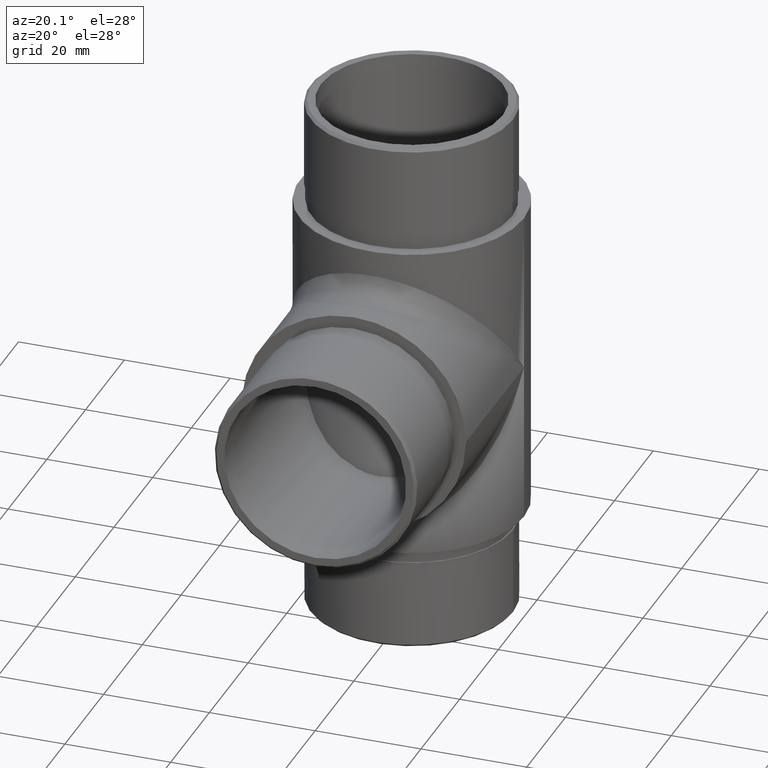
[diagram: clean part render]
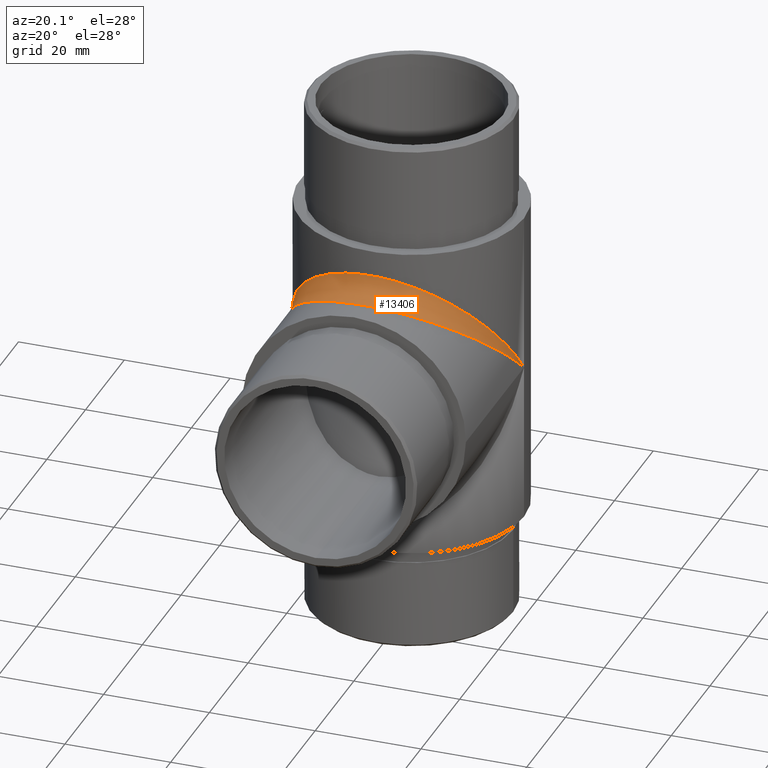
[diagram: same view with one face highlighted and labeled with its STEP entity id]
A machine part, auxiliary view. The second image highlights one B-rep face of the part: STEP entity #13406.
In plain terms, the highlighted face is a freeform B-spline surface patch.
Its self-contained STEP definition (entity closure, byte-faithful):
#20 = CARTESIAN_POINT ( 'NONE',  ( 21.19999999999594600, 48.48156063009035000, 1.518439369887790900 ) ) ;
#245 = CARTESIAN_POINT ( 'NONE',  ( 20.11723341722397500, 43.16902804253513900, 8.119834590945707500 ) ) ;
#295 = CARTESIAN_POINT ( 'NONE',  ( 8.158931141553109600, 30.34716571671100400, 19.65283428329156100 ) ) ;
#344 = CARTESIAN_POINT ( 'NONE',  ( -9.394805574707854500, 27.34940939695576400, 19.05525876129643900 ) ) ;
#386 = CARTESIAN_POINT ( 'NONE',  ( 5.496790452048763600, 29.47804704779630600, 24.39401954696608500 ) ) ;
#423 = CARTESIAN_POINT ( 'NONE',  ( 9.380193309305928700, 30.88439283652694900, 19.11560716347517200 ) ) ;
#477 = CARTESIAN_POINT ( 'NONE',  ( -19.05525876124776000, 40.60519442517997400, 11.16741040025886800 ) ) ;
#517 = CARTESIAN_POINT ( 'NONE',  ( -15.97180040982484300, 35.99047288752112200, 16.65283411483675000 ) ) ;
#1127 = CARTESIAN_POINT ( 'NONE',  ( 21.19999999999983600, 48.35064514728934200, 1.387552495128705300 ) ) ;
#1311 = CARTESIAN_POINT ( 'NONE',  ( -1.125737368065278500, 28.80000000000568900, 21.19999999999999600 ) ) ;
#1358 = CARTESIAN_POINT ( 'NONE',  ( 21.06334293691931900, 47.22496079873127400, 3.298631503401885400 ) ) ;
#1399 = CARTESIAN_POINT ( 'NONE',  ( 1.387536754971157000, 28.80000000000568900, 25.19999999999999600 ) ) ;
#1446 = CARTESIAN_POINT ( 'NONE',  ( -2.239409227885654600, 28.87991635416347300, 21.12008364584218300 ) ) ;
#1496 = CARTESIAN_POINT ( 'NONE',  ( -12.93178358779797300, 29.96328783516608500, 16.85628166248399000 ) ) ;
#1539 = CARTESIAN_POINT ( 'NONE',  ( -21.19999999999594600, 48.48156063010397100, 1.518439369906532200 ) ) ;
#1577 = CARTESIAN_POINT ( 'NONE',  ( -16.85628166244857700, 34.62825724463304800, 12.93178358785069000 ) ) ;
#2186 = VERTEX_POINT ( 'NONE', #4197 ) ;
#2220 = CARTESIAN_POINT ( 'NONE',  ( 21.19999999999999200, 50.00000000000284900, 2.390033451593520300E-012 ) ) ;
#2355 = CARTESIAN_POINT ( 'NONE',  ( -6.830971957570777200, 26.08706216448618400, 20.11723341718260000 ) ) ;
#2401 = CARTESIAN_POINT ( 'NONE',  ( 16.85628166244692500, 37.06821641215204000, 15.37174275537025600 ) ) ;
#2445 = CARTESIAN_POINT ( 'NONE',  ( 15.97180040982308200, 35.99047288751936700, 16.65283411484026400 ) ) ;
#2489 = CARTESIAN_POINT ( 'NONE',  ( -9.394805574707488600, 30.94474123870922400, 22.65059060304992000 ) ) ;
#2532 = CARTESIAN_POINT ( 'NONE',  ( 12.93969731450562900, 33.08453572048951900, 16.91546427951944800 ) ) ;
#2540 = ORIENTED_EDGE ( 'NONE', *, *, #4991, .F. ) ;
#2577 = CARTESIAN_POINT ( 'NONE',  ( -21.20000000000014900, 48.61244750487848200, 1.649354852719447000 ) ) ;
#2624 = CARTESIAN_POINT ( 'NONE',  ( -19.90922392696631600, 42.53796719160212100, 7.462032808405070700 ) ) ;
#3407 = CARTESIAN_POINT ( 'NONE',  ( -1.387536754971248700, 24.80000000000568900, 21.19999999999999600 ) ) ;
#3452 = CARTESIAN_POINT ( 'NONE',  ( 9.394805574709719700, 30.94474123871015100, 22.65059060304683000 ) ) ;
#3492 = CARTESIAN_POINT ( 'NONE',  ( 18.39802989917851400, 39.37560570782448400, 12.62899698882062400 ) ) ;
#3538 = CARTESIAN_POINT ( 'NONE',  ( 5.496790452048948300, 25.60598045303959900, 20.52195295220940400 ) ) ;
#3584 = CARTESIAN_POINT ( 'NONE',  ( 16.85628166244798400, 34.62825724463542800, 12.93178358785158700 ) ) ;
#3631 = CARTESIAN_POINT ( 'NONE',  ( -18.66376453321944200, 39.79218389910428000, 10.20781610089901600 ) ) ;
#3675 = CARTESIAN_POINT ( 'NONE',  ( -16.11916415239836900, 36.09608611141825200, 13.90391388858326800 ) ) ;
#3751 = CARTESIAN_POINT ( 'NONE',  ( 21.19999999999999900, 50.00000000000568400, 0.0000000000000000000 ) ) ;
#4197 = CARTESIAN_POINT ( 'NONE',  ( -21.19999999999999900, 50.00000000000568400, 0.0000000000000000000 ) ) ;
#4221 = CARTESIAN_POINT ( 'NONE',  ( 21.06334293691975600, 46.70136849660379900, 2.775039201273806500 ) ) ;
#4444 = CARTESIAN_POINT ( 'NONE',  ( 17.88959957407314100, 38.48824466618227500, 11.51175533382668800 ) ) ;
#4490 = CARTESIAN_POINT ( 'NONE',  ( -2.775039201433301600, 28.93665706311775000, 25.03755858535686200 ) ) ;
#4533 = CARTESIAN_POINT ( 'NONE',  ( 11.77272424252816800, 32.26062658822560500, 17.73937341178306300 ) ) ;
#4579 = CARTESIAN_POINT ( 'NONE',  ( 2.239409227890148300, 28.87991635415769000, 21.12008364584501100 ) ) ;
#4623 = CARTESIAN_POINT ( 'NONE',  ( -12.93178358779746000, 33.14371833752155500, 20.03671216483960300 ) ) ;
#4667 = CARTESIAN_POINT ( 'NONE',  ( -18.39802989917766100, 37.37100301118740500, 10.62439429218294000 ) ) ;
#4719 = CARTESIAN_POINT ( 'NONE',  ( -20.52195295217647700, 44.50320954779041900, 6.533920726216866400 ) ) ;
#4842 = CARTESIAN_POINT ( 'NONE',  ( -21.19999999999998900, -0.3999999999891937800, 42.39999999999999900 ) ) ;
#4991 = EDGE_CURVE ( 'NONE', #7272, #2186, #5347, .T. ) ;
#5022 =( BOUNDED_SURFACE ( )  B_SPLINE_SURFACE ( 3, 2, ( 
 ( #2220, #7504, #11727 ),
 ( #1127, #20, #10504 ),
 ( #4221, #9481, #1358 ),
 ( #5552, #7591, #5503 ),
 ( #8664, #11825, #245 ),
 ( #12783, #8707, #11867 ),
 ( #10726, #4444, #3492 ),
 ( #3584, #6547, #2401 ),
 ( #11783, #9712, #2445 ),
 ( #7730, #2532, #7686 ),
 ( #9850, #4533, #9805 ),
 ( #10864, #423, #12829 ),
 ( #12916, #295, #3452 ),
 ( #6502, #6639, #5458 ),
 ( #3538, #5594, #386 ),
 ( #9755, #4579, #10768 ),
 ( #7548, #9667, #1399 ),
 ( #3407, #1311, #8614 ),
 ( #10908, #1446, #4490 ),
 ( #6689, #10822, #8752 ),
 ( #2355, #12870, #6593 ),
 ( #344, #7641, #2489 ),
 ( #11908, #5637, #12954 ),
 ( #1496, #8796, #4623 ),
 ( #5732, #6771, #8840 ),
 ( #13034, #7824, #517 ),
 ( #1577, #3675, #8886 ),
 ( #4667, #12996, #9936 ),
 ( #5772, #3631, #477 ),
 ( #10948, #2624, #5682 ),
 ( #10994, #12002, #4719 ),
 ( #12047, #6724, #11955 ),
 ( #9890, #1539, #2577 ),
 ( #7773, #7207, #5338 ) ),
 .UNSPECIFIED., .F., .F., .F. ) 
 B_SPLINE_SURFACE_WITH_KNOTS ( ( 4, 2, 2, 2, 2, 2, 2, 2, 2, 2, 2, 2, 2, 2, 2, 2, 4 ),
 ( 3, 3 ),
 ( 1.570796326795009400, 1.767145867644357400, 1.963495408493705300, 2.159844949343053200, 2.356194490192401200, 2.552544031041748900, 2.748893571891097000, 2.945243112740445000, 3.141592653589793100, 3.337942194439141200, 3.534291735288489300, 3.730641276137837400, 3.926990816987185000, 4.123340357836532600, 4.319689898685880700, 4.516039439535228800, 4.712388980384576900 ),
 ( 0.0000000000000000000, 1.000000000000000000 ),
 .UNSPECIFIED. ) 
 GEOMETRIC_REPRESENTATION_ITEM ( )  RATIONAL_B_SPLINE_SURFACE ( (
 ( 1.000000000000000000, 1.000000000000000000, 1.000000000000000000),
 ( 1.000000000000000000, 1.000009746408428800, 1.000000000000000000),
 ( 1.000000000000000000, 0.9967613244637724100, 1.000000000000000000),
 ( 1.000000000000000000, 0.9841171504839706400, 1.000000000000000000),
 ( 1.000000000000000000, 0.9747108043703907000, 1.000000000000000000),
 ( 1.000000000000000000, 0.9506740353919294100, 1.000000000000000000),
 ( 1.000000000000000000, 0.9360421842822935800, 1.000000000000000000),
 ( 1.000000000000000000, 0.9031650994041138200, 1.000000000000000000),
 ( 1.000000000000000000, 0.8849191471496602500, 1.000000000000000000),
 ( 1.000000000000000000, 0.8471316604192301600, 1.000000000000000000),
 ( 1.000000000000000000, 0.8275942696177675000, 1.000000000000000000),
 ( 1.000000000000000000, 0.7902180086255862200, 1.000000000000000000),
 ( 1.000000000000000000, 0.7723968218425871800, 1.000000000000000000),
 ( 1.000000000000000000, 0.7418334178546244200, 1.000000000000000000),
 ( 1.000000000000000000, 0.7291288940370769200, 1.000000000000000000),
 ( 1.000000000000000000, 0.7117460025062424300, 1.000000000000000000),
 ( 1.000000000000000000, 0.7071067811865475700, 1.000000000000000000),
 ( 1.000000000000000000, 0.7071067811865475700, 1.000000000000000000),
 ( 1.000000000000000000, 0.7117460025057752400, 1.000000000000000000),
 ( 1.000000000000000000, 0.7291288940375425500, 1.000000000000000000),
 ( 1.000000000000000000, 0.7418334178548197100, 1.000000000000000000),
 ( 1.000000000000000000, 0.7723968218423903400, 1.000000000000000000),
 ( 1.000000000000000000, 0.7902180086253760600, 1.000000000000000000),
 ( 1.000000000000000000, 0.8275942696179763300, 1.000000000000000000),
 ( 1.000000000000000000, 0.8471316604192304900, 1.000000000000000000),
 ( 1.000000000000000000, 0.8849191471496604700, 1.000000000000000000),
 ( 1.000000000000000000, 0.9031650994042337300, 1.000000000000000000),
 ( 1.000000000000000000, 0.9360421842821731200, 1.000000000000000000),
 ( 1.000000000000000000, 0.9506740353918959900, 1.000000000000000000),
 ( 1.000000000000000000, 0.9747108043704234600, 1.000000000000000000),
 ( 1.000000000000000000, 0.9841171504840986500, 1.000000000000000000),
 ( 1.000000000000000000, 0.9967613244636439600, 1.000000000000000000),
 ( 1.000000000000000000, 1.000009746408525400, 1.000000000000000000),
 ( 1.000000000000000000, 1.000000000000000000, 1.000000000000000000) ) ) 
 REPRESENTATION_ITEM ( '' )  SURFACE ( )  );
#5315 = CARTESIAN_POINT ( 'NONE',  ( 21.19999999999999900, 50.00000000000568400, 0.0000000000000000000 ) ) ;
#5338 = CARTESIAN_POINT ( 'NONE',  ( -21.19999999999999200, 50.00000000000240900, 2.824773283132614200E-012 ) ) ;
#5347 =( BOUNDED_CURVE ( )  B_SPLINE_CURVE ( 3, ( #3751, #10051, #4842, #7022 ),
 .UNSPECIFIED., .F., .T. ) 
 B_SPLINE_CURVE_WITH_KNOTS ( ( 4, 4 ),
 ( 1.570796326794896800, 4.712388980384689700 ),
 .UNSPECIFIED. ) 
 CURVE ( )  GEOMETRIC_REPRESENTATION_ITEM ( )  RATIONAL_B_SPLINE_CURVE ( ( 1.000000000000000000, 0.3333333333333333700, 0.3333333333333333700, 1.000000000000000000 ) ) 
 REPRESENTATION_ITEM ( '' )  );
#5458 = CARTESIAN_POINT ( 'NONE',  ( 6.830971957568404900, 29.88276658282196500, 23.91293783552253800 ) ) ;
#5503 = CARTESIAN_POINT ( 'NONE',  ( 20.52195295217648800, 44.50320954779046900, 6.533920726215812100 ) ) ;
#5552 = CARTESIAN_POINT ( 'NONE',  ( 20.52195295217639900, 43.46607927378988000, 5.496790452214098000 ) ) ;
#5594 = CARTESIAN_POINT ( 'NONE',  ( 4.558171072699733100, 29.24272865597170000, 20.75727134403684100 ) ) ;
#5637 = CARTESIAN_POINT ( 'NONE',  ( -9.380193309310598700, 30.88439283652674700, 19.11560716347537400 ) ) ;
#5682 = CARTESIAN_POINT ( 'NONE',  ( -20.11723341722876100, 43.16902804254668500, 8.119834590945654200 ) ) ;
#5732 = CARTESIAN_POINT ( 'NONE',  ( -14.00952711248247500, 31.01465234303844900, 15.97180040982702400 ) ) ;
#5772 = CARTESIAN_POINT ( 'NONE',  ( -19.05525876124919200, 38.83258959974097000, 9.394805574821504000 ) ) ;
#6154 = CARTESIAN_POINT ( 'NONE',  ( 21.19999999999999900, 50.00000000000568400, 0.0000000000000000000 ) ) ;
#6502 = CARTESIAN_POINT ( 'NONE',  ( 6.830971957569986800, 26.08706216448314700, 20.11723341718293100 ) ) ;
#6527 = EDGE_LOOP ( 'NONE', ( #7583, #2540 ) ) ;
#6547 = CARTESIAN_POINT ( 'NONE',  ( 16.11916415240030900, 36.09608611141553800, 13.90391388858597900 ) ) ;
#6593 = CARTESIAN_POINT ( 'NONE',  ( -6.830971957570503700, 29.88276658282284300, 23.91293783551950400 ) ) ;
#6639 = CARTESIAN_POINT ( 'NONE',  ( 5.738669216344021600, 29.51950870254753700, 20.48049129746115300 ) ) ;
#6689 = CARTESIAN_POINT ( 'NONE',  ( -5.496790452049050500, 25.60598045303958500, 20.52195295220939300 ) ) ;
#6724 = CARTESIAN_POINT ( 'NONE',  ( -21.03526683215003600, 46.95376771971899600, 3.046232280298192900 ) ) ;
#6771 = CARTESIAN_POINT ( 'NONE',  ( -12.93969731450743100, 33.08453572048236400, 16.91546427952301800 ) ) ;
#7022 = CARTESIAN_POINT ( 'NONE',  ( -21.19999999999999900, 50.00000000000568400, 0.0000000000000000000 ) ) ;
#7207 = CARTESIAN_POINT ( 'NONE',  ( -21.19999999999999200, 50.00000000000263600, 2.600584927328438100E-012 ) ) ;
#7272 = VERTEX_POINT ( 'NONE', #6154 ) ;
#7354 = CARTESIAN_POINT ( 'NONE',  ( -21.19999999999999200, 7.600000000005700000, 50.39999999999999900 ) ) ;
#7504 = CARTESIAN_POINT ( 'NONE',  ( 21.19999999999999200, 50.00000000000262900, 2.615508305517437500E-012 ) ) ;
#7548 = CARTESIAN_POINT ( 'NONE',  ( 1.387536754971216100, 24.80000000000568900, 21.19999999999999600 ) ) ;
#7583 = ORIENTED_EDGE ( 'NONE', *, *, #12368, .F. ) ;
#7591 = CARTESIAN_POINT ( 'NONE',  ( 20.39372171537017000, 43.99026340462347000, 6.009736595362618900 ) ) ;
#7641 = CARTESIAN_POINT ( 'NONE',  ( -8.158931141552599800, 30.34716571670808700, 19.65283428330048200 ) ) ;
#7686 = CARTESIAN_POINT ( 'NONE',  ( 14.00952711248392100, 34.02819959017979600, 18.98534765696374600 ) ) ;
#7730 = CARTESIAN_POINT ( 'NONE',  ( 14.00952711248246100, 31.01465234304544100, 15.97180040982703500 ) ) ;
#7773 = CARTESIAN_POINT ( 'NONE',  ( -21.19999999999999200, 50.00000000000286300, 2.376396571524262500E-012 ) ) ;
#7824 = CARTESIAN_POINT ( 'NONE',  ( -15.10869200123944000, 35.00658604097787200, 14.99341395902750800 ) ) ;
#8293 = FACE_OUTER_BOUND ( 'NONE', #6527, .T. ) ;
#8614 = CARTESIAN_POINT ( 'NONE',  ( -1.387536754971189400, 28.80000000000568900, 25.19999999999999600 ) ) ;
#8664 = CARTESIAN_POINT ( 'NONE',  ( 20.11723341722800400, 41.88016540905413600, 6.830971957461566800 ) ) ;
#8707 = CARTESIAN_POINT ( 'NONE',  ( 18.66376453321072000, 39.79218389910954600, 10.20781610090163700 ) ) ;
#8752 = CARTESIAN_POINT ( 'NONE',  ( -5.496790452049566500, 29.47804704779645800, 24.39401954696609900 ) ) ;
#8796 = CARTESIAN_POINT ( 'NONE',  ( -11.77272424252304000, 32.26062658822541400, 17.73937341178324800 ) ) ;
#8840 = CARTESIAN_POINT ( 'NONE',  ( -14.00952711248217900, 34.02819959017805500, 18.98534765696724200 ) ) ;
#8886 = CARTESIAN_POINT ( 'NONE',  ( -16.85628166244665800, 37.06821641215164900, 15.37174275536892100 ) ) ;
#9481 = CARTESIAN_POINT ( 'NONE',  ( 21.03526683214601800, 46.95376771971884700, 3.046232280305303200 ) ) ;
#9667 = CARTESIAN_POINT ( 'NONE',  ( 1.125737368065252000, 28.80000000000568900, 21.19999999999999600 ) ) ;
#9712 = CARTESIAN_POINT ( 'NONE',  ( 15.10869200124114200, 35.00658604097100800, 14.99341395903094700 ) ) ;
#9755 = CARTESIAN_POINT ( 'NONE',  ( 2.775039201434348800, 24.96244141464883600, 21.06334293688766500 ) ) ;
#9805 = CARTESIAN_POINT ( 'NONE',  ( 12.93178358779975000, 33.14371833752309000, 20.03671216483957800 ) ) ;
#9850 = CARTESIAN_POINT ( 'NONE',  ( 12.93178358779913300, 29.96328783516610600, 16.85628166248321600 ) ) ;
#9890 = CARTESIAN_POINT ( 'NONE',  ( -21.19999999999983600, 48.35064514730295600, 1.387552495144481500 ) ) ;
#9936 = CARTESIAN_POINT ( 'NONE',  ( -18.39802989917874900, 39.37560570782483200, 12.62899698882199900 ) ) ;
#10051 = CARTESIAN_POINT ( 'NONE',  ( 21.19999999999998900, -0.3999999999891937800, 42.39999999999999100 ) ) ;
#10504 = CARTESIAN_POINT ( 'NONE',  ( 21.20000000000014900, 48.61244750485995800, 1.649354852702993300 ) ) ;
#10726 = CARTESIAN_POINT ( 'NONE',  ( 18.39802989917828700, 37.37100301118506000, 10.62439429218201100 ) ) ;
#10768 = CARTESIAN_POINT ( 'NONE',  ( 2.775039201434188000, 28.93665706311792700, 25.03755858535684800 ) ) ;
#10822 = CARTESIAN_POINT ( 'NONE',  ( -4.558171072702562800, 29.24272865596580900, 20.75727134403984000 ) ) ;
#10864 = CARTESIAN_POINT ( 'NONE',  ( 10.62439429223053200, 28.13064370479582600, 18.39802989914567300 ) ) ;
#10908 = CARTESIAN_POINT ( 'NONE',  ( -2.775039201434162700, 24.96244141464882600, 21.06334293688770000 ) ) ;
#10948 = CARTESIAN_POINT ( 'NONE',  ( -20.11723341722796800, 41.88016540906586700, 6.830971957461664500 ) ) ;
#10994 = CARTESIAN_POINT ( 'NONE',  ( -20.52195295217654100, 43.46607927378982300, 5.496790452213375000 ) ) ;
#11542 = CARTESIAN_POINT ( 'NONE',  ( -21.19999999999999900, 50.00000000000568400, 0.0000000000000000000 ) ) ;
#11727 = CARTESIAN_POINT ( 'NONE',  ( 21.19999999999999200, 50.00000000000239500, 2.840983159441354800E-012 ) ) ;
#11783 = CARTESIAN_POINT ( 'NONE',  ( 15.97180040982544600, 33.34716588516192100, 14.00952711248427600 ) ) ;
#11825 = CARTESIAN_POINT ( 'NONE',  ( 19.90922392697487100, 42.53796719159712600, 7.462032808402366200 ) ) ;
#11867 = CARTESIAN_POINT ( 'NONE',  ( 19.05525876125256000, 40.60519442519156300, 11.16741040025876200 ) ) ;
#11908 = CARTESIAN_POINT ( 'NONE',  ( -10.62439429223163300, 28.13064370479580100, 18.39802989914493400 ) ) ;
#11955 = CARTESIAN_POINT ( 'NONE',  ( -21.06334293691931600, 47.22496079873122500, 3.298631503400934100 ) ) ;
#12002 = CARTESIAN_POINT ( 'NONE',  ( -20.39372171536616600, 43.99026340462361200, 6.009736595369530800 ) ) ;
#12047 = CARTESIAN_POINT ( 'NONE',  ( -21.06334293691959700, 46.70136849660374200, 2.775039201274615700 ) ) ;
#12368 = EDGE_CURVE ( 'NONE', #2186, #7272, #12802, .T. ) ;
#12783 = CARTESIAN_POINT ( 'NONE',  ( 19.05525876124917100, 38.83258959975276500, 9.394805574821557300 ) ) ;
#12802 =( BOUNDED_CURVE ( )  B_SPLINE_CURVE ( 3, ( #11542, #7354, #13483, #5315 ),
 .UNSPECIFIED., .F., .F. ) 
 B_SPLINE_CURVE_WITH_KNOTS ( ( 4, 4 ),
 ( 1.570796326794896600, 4.712388980384689700 ),
 .UNSPECIFIED. ) 
 CURVE ( )  GEOMETRIC_REPRESENTATION_ITEM ( )  RATIONAL_B_SPLINE_CURVE ( ( 1.000000000000000000, 0.3333333333333333700, 0.3333333333333333700, 1.000000000000000000 ) ) 
 REPRESENTATION_ITEM ( '' )  );
#12829 = CARTESIAN_POINT ( 'NONE',  ( 10.62439429222908100, 31.60197010085882900, 21.86935629520985800 ) ) ;
#12870 = CARTESIAN_POINT ( 'NONE',  ( -5.738669216345065200, 29.51950870255075200, 20.48049129745168200 ) ) ;
#12916 = CARTESIAN_POINT ( 'NONE',  ( 9.394805574708776400, 27.34940939695885500, 19.05525876129605900 ) ) ;
#12954 = CARTESIAN_POINT ( 'NONE',  ( -10.62439429223131300, 31.60197010086032100, 21.86935629520988300 ) ) ;
#12996 = CARTESIAN_POINT ( 'NONE',  ( -17.88959957407520900, 38.48824466617993800, 11.51175533382903100 ) ) ;
#13034 = CARTESIAN_POINT ( 'NONE',  ( -15.97180040982545200, 33.34716588516893400, 14.00952711248426800 ) ) ;
#13406 = ADVANCED_FACE ( 'NONE', ( #8293 ), #5022, .F. ) ;
#13483 = CARTESIAN_POINT ( 'NONE',  ( 21.19999999999998200, 7.600000000005692900, 50.39999999999999900 ) ) ;